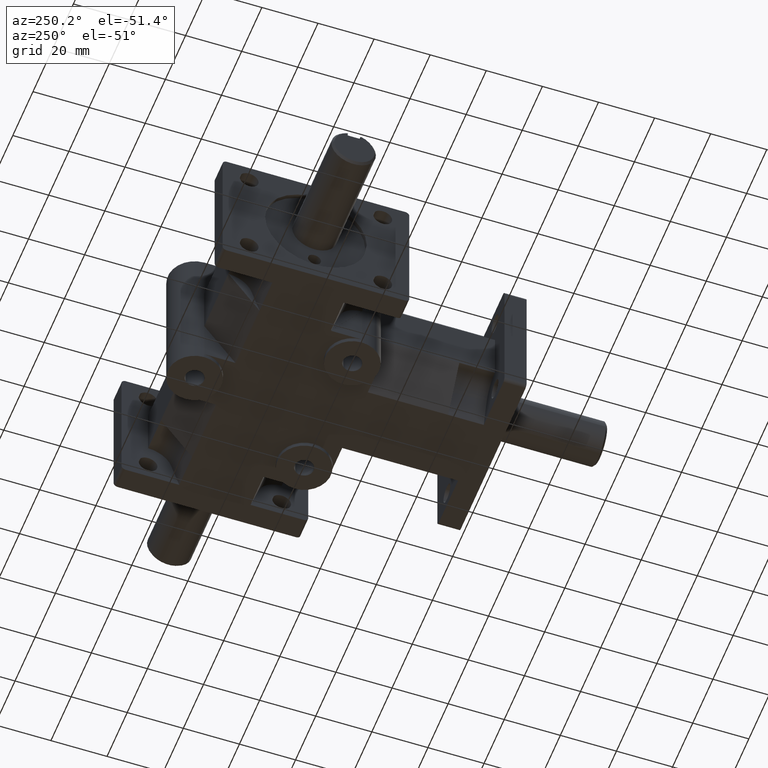
[diagram: clean part render]
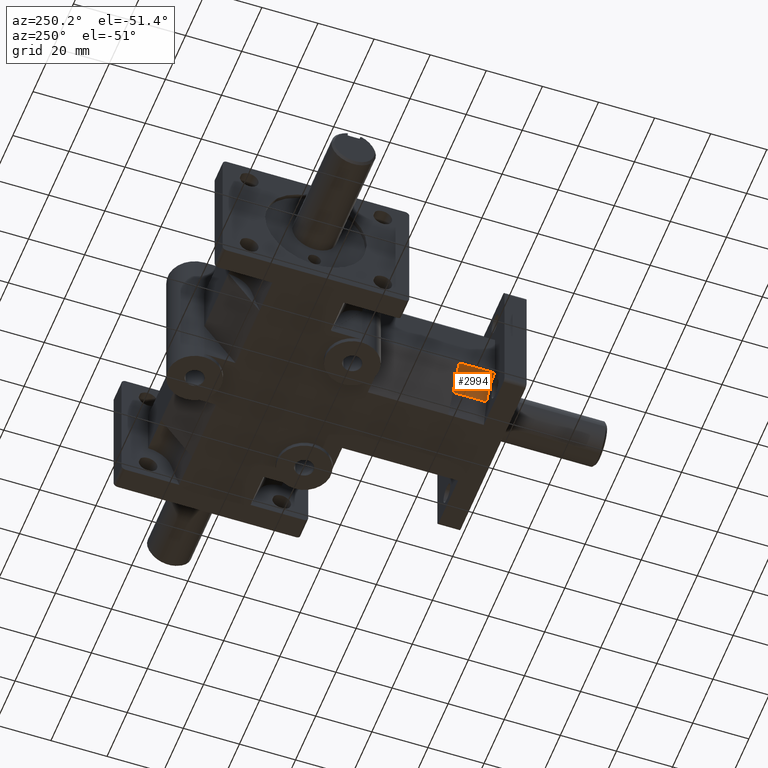
[diagram: same view with one face highlighted and labeled with its STEP entity id]
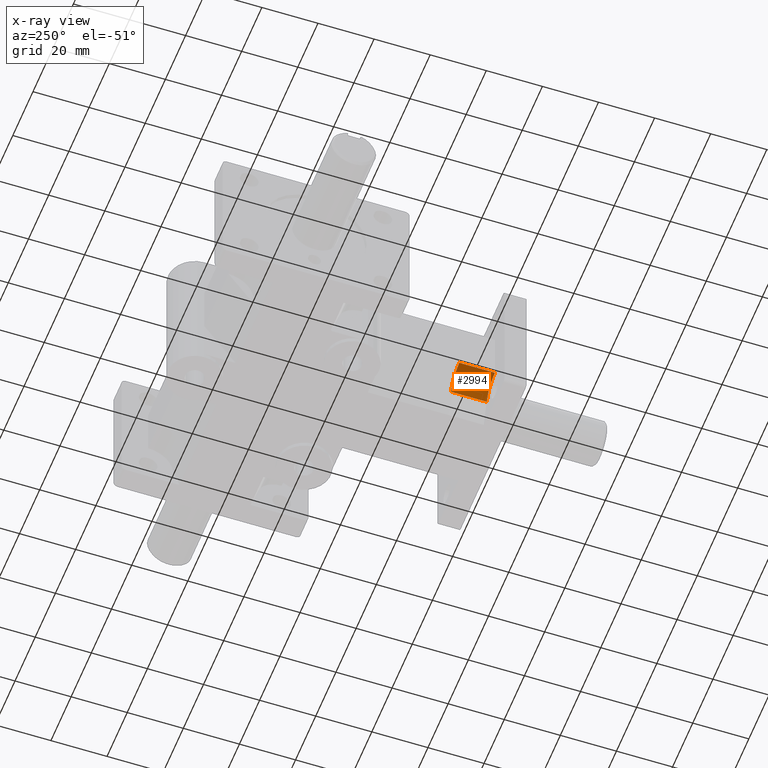
[diagram: x-ray of the same camera — body ghosted, the highlighted face saturated]
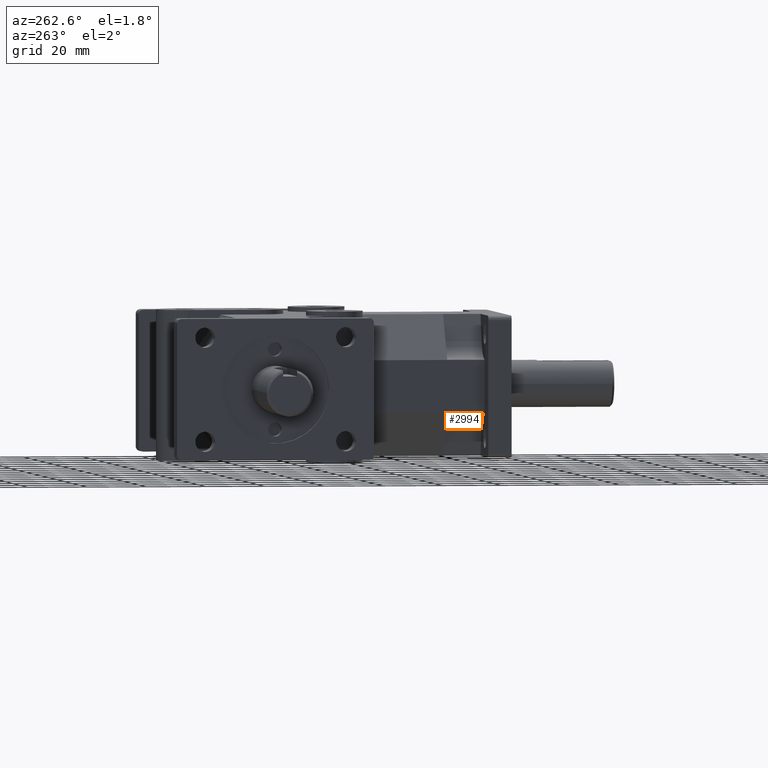
[diagram: same view with one face highlighted and labeled with its STEP entity id]
A machine part, auxiliary view. The second image highlights one B-rep face of the part: STEP entity #2994.
The next image is the same camera in x-ray: the body ghosted, the highlighted face saturated — about 0% of this face is hidden behind the body in this view.
A second angle (auxiliary view) of the same face is appended — the face is thin or edge-on in the first view.
In plain terms, the highlighted cylindrical surface (edge-blend (fillet) strip) has radius 8.636 mm, axis along (0, 1, 0).
Its self-contained STEP definition (entity closure, byte-faithful):
#264=FACE_OUTER_BOUND('',#455,.T.);
#455=EDGE_LOOP('',(#2382,#2383,#2384,#2385));
#735=LINE('',#4819,#1031);
#736=LINE('',#4822,#1032);
#1031=VECTOR('',#3906,1.);
#1032=VECTOR('',#3909,1.);
#1210=CIRCLE('',#3184,0.34);
#1235=CIRCLE('',#3261,0.34);
#1385=VERTEX_POINT('',#4544);
#1386=VERTEX_POINT('',#4546);
#1470=VERTEX_POINT('',#4818);
#1471=VERTEX_POINT('',#4820);
#1681=EDGE_CURVE('',#1385,#1386,#1210,.T.);
#1817=EDGE_CURVE('',#1470,#1385,#735,.T.);
#1818=EDGE_CURVE('',#1471,#1470,#1235,.T.);
#1819=EDGE_CURVE('',#1386,#1471,#736,.T.);
#2382=ORIENTED_EDGE('',*,*,#1817,.F.);
#2383=ORIENTED_EDGE('',*,*,#1818,.F.);
#2384=ORIENTED_EDGE('',*,*,#1819,.F.);
#2385=ORIENTED_EDGE('',*,*,#1681,.F.);
#2885=CYLINDRICAL_SURFACE('',#3260,0.34);
#2994=ADVANCED_FACE('',(#264),#2885,.F.);
#3184=AXIS2_PLACEMENT_3D('',#4547,#3641,#3642);
#3260=AXIS2_PLACEMENT_3D('',#4817,#3904,#3905);
#3261=AXIS2_PLACEMENT_3D('',#4821,#3907,#3908);
#3641=DIRECTION('center_axis',(0.,1.,0.));
#3642=DIRECTION('ref_axis',(1.,0.,0.));
#3904=DIRECTION('center_axis',(0.,1.,0.));
#3905=DIRECTION('ref_axis',(1.,0.,0.));
#3906=DIRECTION('',(0.,-1.,0.));
#3907=DIRECTION('center_axis',(0.,-1.,0.));
#3908=DIRECTION('ref_axis',(1.,0.,0.));
#3909=DIRECTION('',(0.,1.,0.));
#4544=CARTESIAN_POINT('',(-0.934728518784819,0.31,-0.347511295934889));
#4546=CARTESIAN_POINT('',(-0.613813143045981,0.31,-0.583448000330467));
#4547=CARTESIAN_POINT('Origin',(-0.9375,0.31,-0.6875));
#4817=CARTESIAN_POINT('Origin',(-0.9375,0.31,-0.6875));
#4818=CARTESIAN_POINT('',(-0.934728518784819,0.81,-0.347511295934889));
#4819=CARTESIAN_POINT('',(-0.934728518784819,0.31,-0.347511295934889));
#4820=CARTESIAN_POINT('',(-0.613813143045981,0.81,-0.583448000330467));
#4821=CARTESIAN_POINT('Origin',(-0.9375,0.81,-0.6875));
#4822=CARTESIAN_POINT('',(-0.613813143045981,0.31,-0.583448000330467));